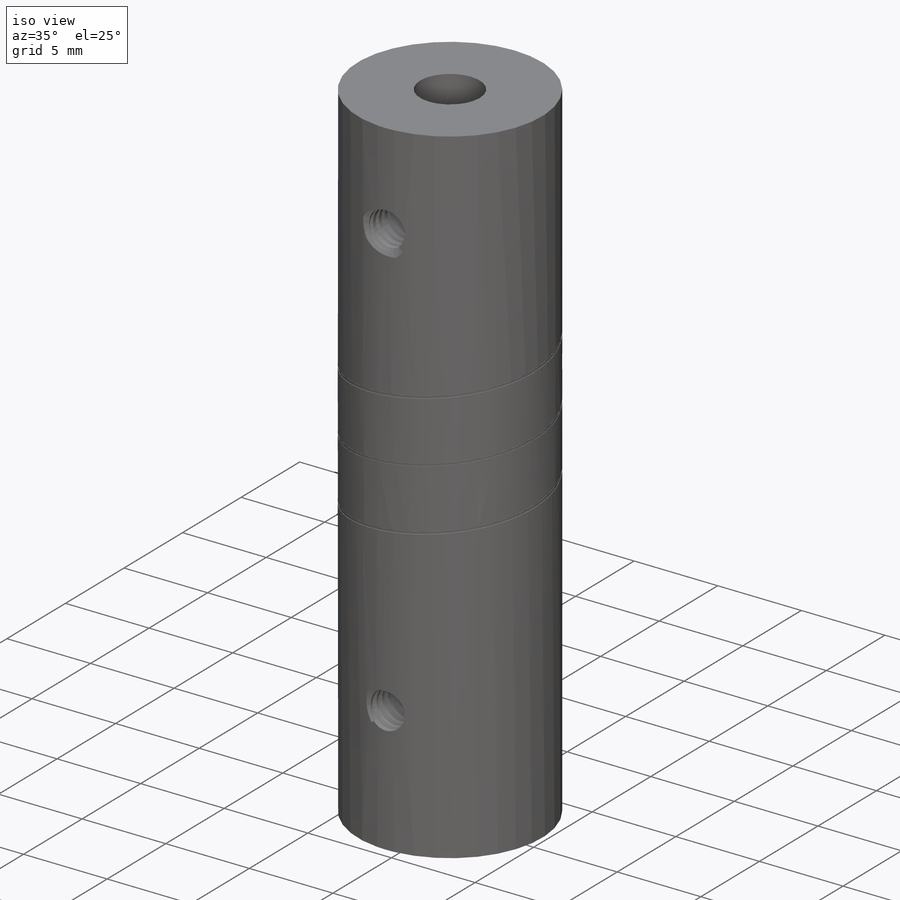
[diagram: iso view]
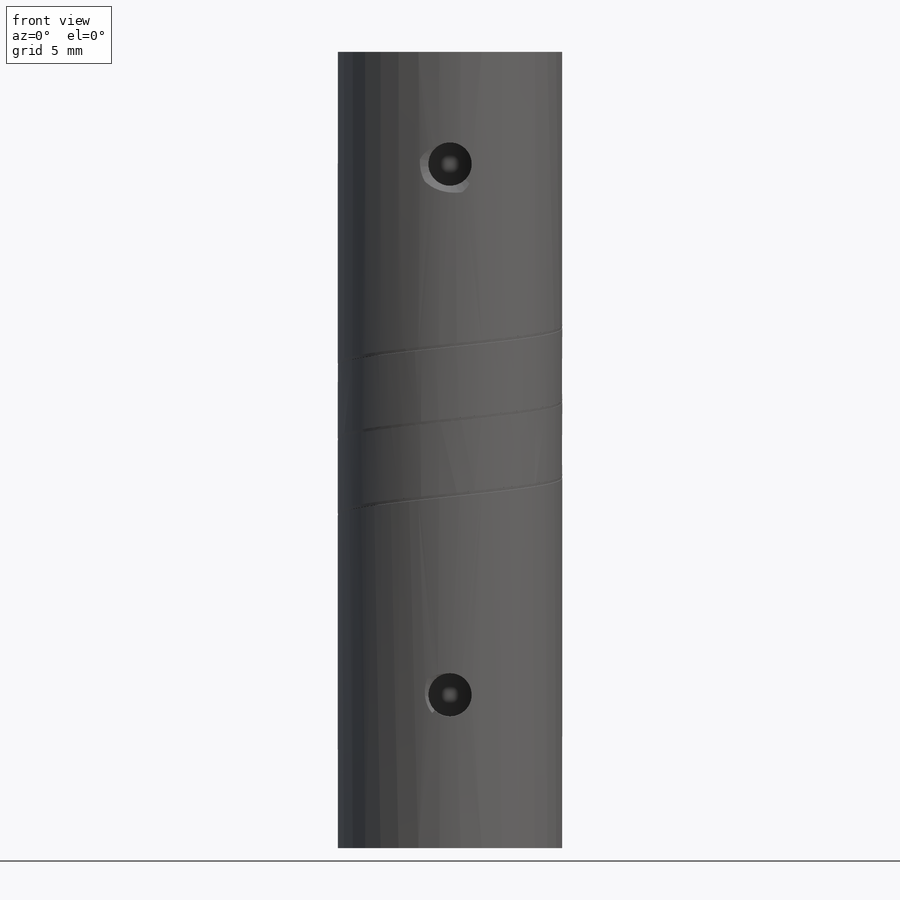
[diagram: front view]
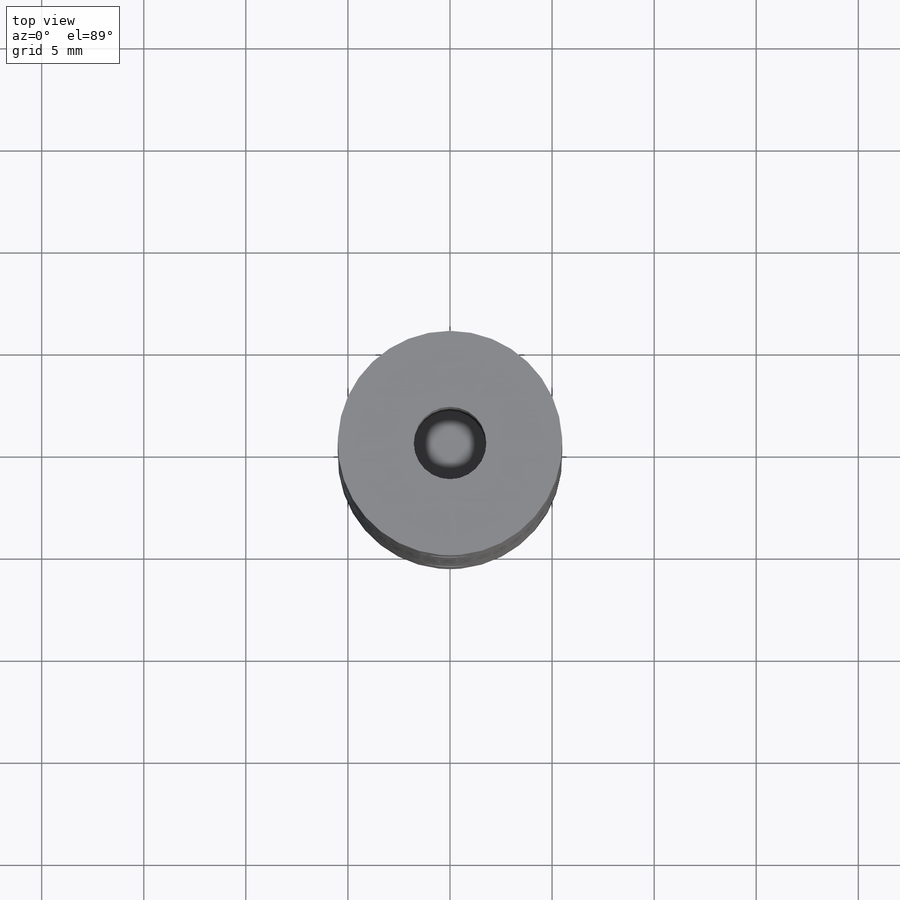
[diagram: top view]
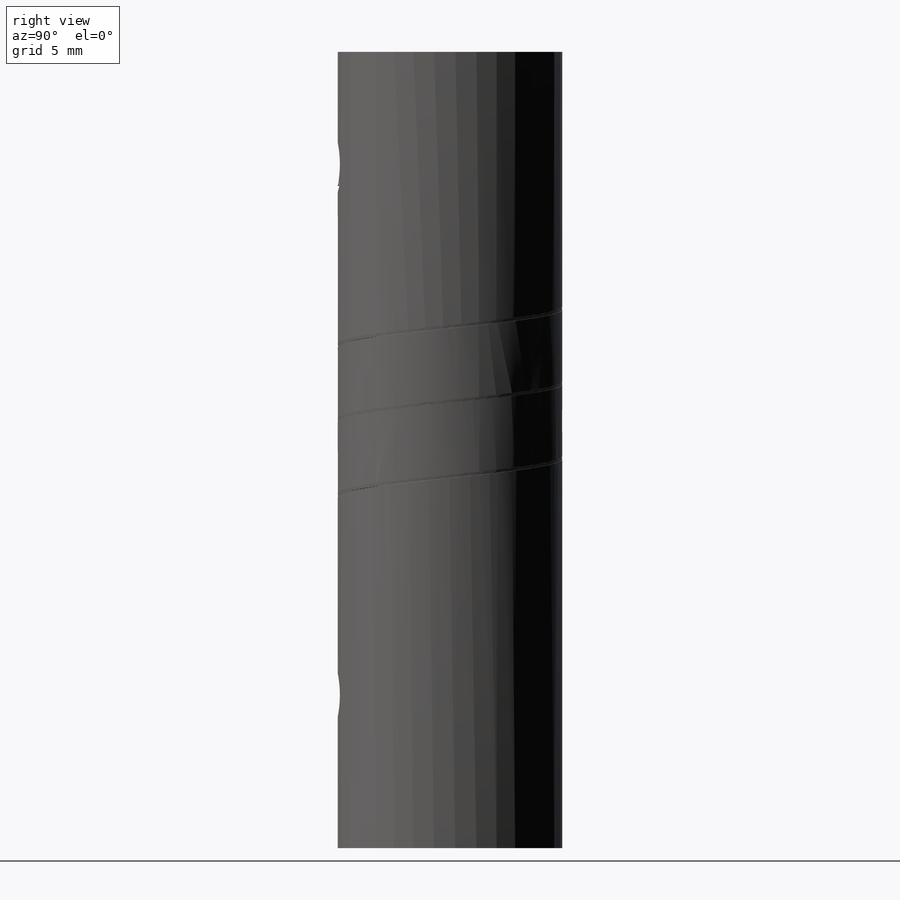
[diagram: right view]
SOLIDWORKS PART (.sldprt)
format: sldprt  version: not decoded by parser v0  size: 671,744 bytes
history: native  units: mm
features: sketch x14, extrude x5, cut_extrude x4, plane x4, helix x3, sweep x3, material x1 (+12 scaffold rows collapsed)
feature tree (46):
  scaffold x12  (default folders/planes/origin — collapsed)
  material  "Material <not specified>"
  sketch  "Sketch1"  dims[c1.D1=~20.606388mm c1.D3=~5.597123mm c2.D1=5.004mm c2.D2=6.002mm]
  extrude  "Boss-Extrude1"  Depth=15mm
  extrude  "Point2"  [1 undecoded]
  cut_extrude  "Cut-Extrude1"  [1 undecoded]
  sketch  "Sketch1<5>"  dims[D1=15.0mm]
  sketch  "Sketch9"  dims[D1=11.0mm]
  extrude  "Boss-Extrude3"  Depth=12mm
  sketch  "Sketch15"  dims[D1=11.0mm D2=11.0mm]
  helix  "Helix/Spiral1"  Pitch=11mm
  plane  "Plane2"
  sketch  "Sketch19"
  sketch  "Sketch20"  dims[D1=11.0mm]
  extrude  "Boss-Extrude4"  Depth=12mm
  sketch  "Sketch21"  dims[D1=3.556mm]
  cut_extrude  "Cut-Extrude2"  Depth=11mm
  sweep  "Cut-Sweep1"
  plane  "Plane3"
  sketch  "Sketch22"  dims[D1=7.5mm]
  cut_extrude  "Cut-Extrude3"  [1 undecoded]
  sketch  "Sketch24"
  helix  "Helix/Spiral2"  Pitch=3.5mm
  plane  "Plane4"
  sketch  "Sketch25"  dims[D1=0.43mm]
  sweep  "Cut-Sweep2"
  sketch  "Sketch27"
  sketch  "Sketch28"  dims[D1=5.5mm]
  cut_extrude  "Cut-Extrude4"  [1 undecoded]
  sketch  "Sketch30"  dims[D1=~1.11057mm]
  helix  "Helix/Spiral3"  Pitch=3.875mm
  plane  "Plane5"
  extrude  "Point3"  [1 undecoded]
  sketch  "Sketch32"  dims[D1=0.43mm]
  sweep  "Cut-Sweep3"
decode coverage: 18 of 29 modeling features carry decoded parameters
note: ~ marks probable driven/reference dimensions
note: 5 parameter values undecoded
summary: no parameter record found for 5 features
note: suppression state not decoded; provenance and decode notes live in map.json
